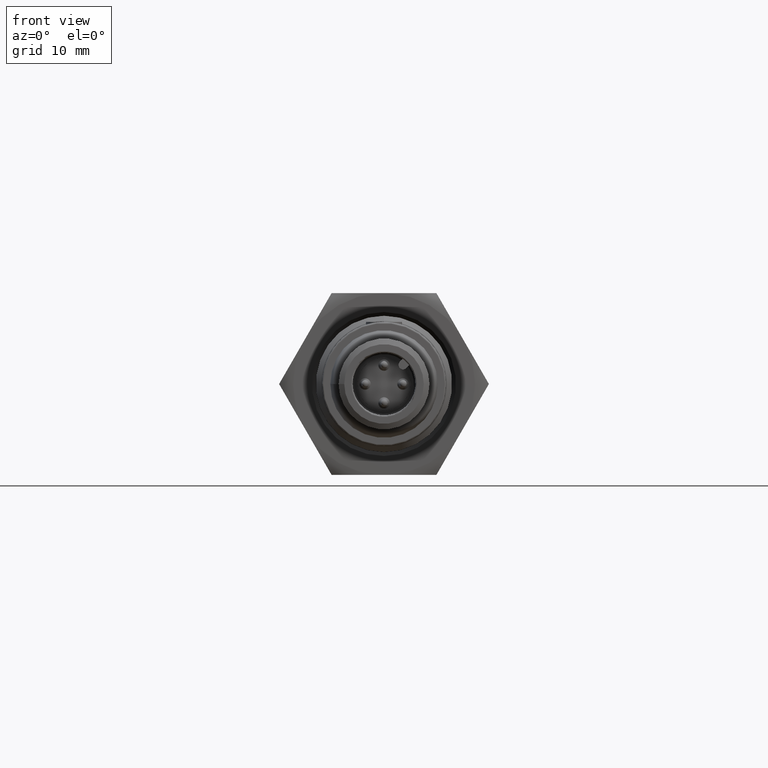
[diagram: clean part render]
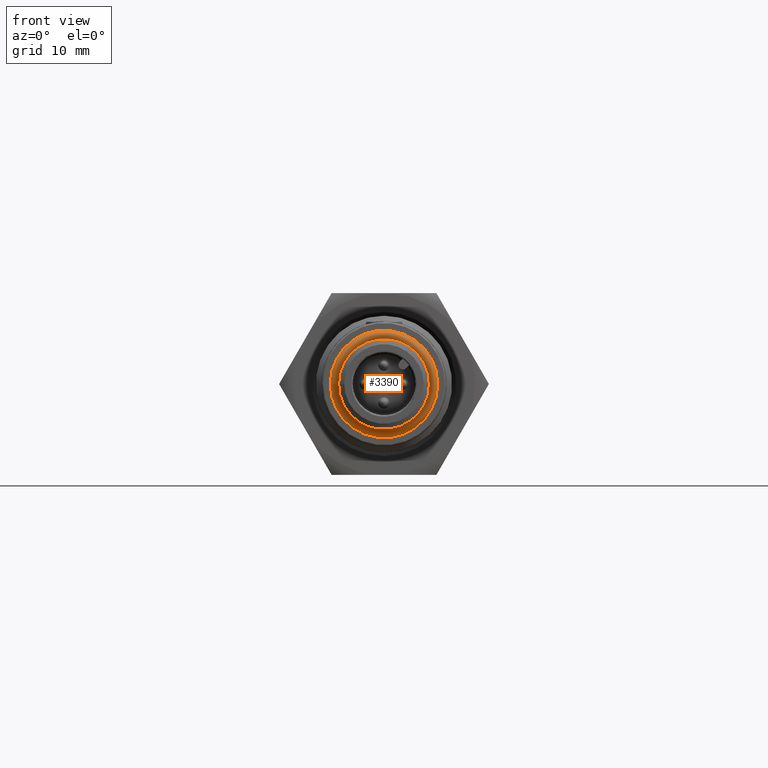
[diagram: same view with one face highlighted and labeled with its STEP entity id]
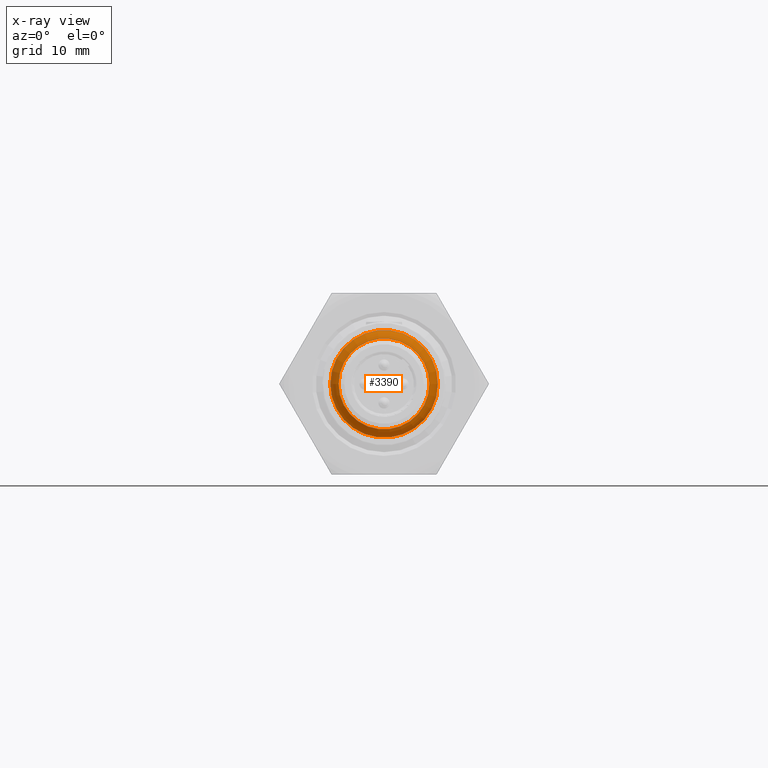
[diagram: x-ray of the same camera — body ghosted, the highlighted face saturated]
A machine part, front view. The second image highlights one B-rep face of the part: STEP entity #3390.
The next image is the same camera in x-ray: the body ghosted, the highlighted face saturated — about 0% of this face is hidden behind the body in this view.
In plain terms, the highlighted toroidal blend (fillet) surface has major radius 5.1 mm and minor (blend) radius 2 mm.
Its self-contained STEP definition (entity closure, byte-faithful):
#388 = AXIS2_PLACEMENT_3D ( 'NONE', #3678, #1662, #3347 ) ;
#390 = ORIENTED_EDGE ( 'NONE', *, *, #4523, .T. ) ;
#505 = DIRECTION ( 'NONE',  ( -0.9999999999999997780, 0.000000000000000000, 2.077430099999999464E-08 ) ) ;
#920 = DIRECTION ( 'NONE',  ( 0.000000000000000000, 1.000000000000000000, 0.000000000000000000 ) ) ;
#964 = EDGE_LOOP ( 'NONE', ( #390 ) ) ;
#1079 = EDGE_LOOP ( 'NONE', ( #2286 ) ) ;
#1094 = AXIS2_PLACEMENT_3D ( 'NONE', #1358, #920, #505 ) ;
#1101 = CARTESIAN_POINT ( 'NONE',  ( -0.2362204724409449064, -1.290907168035525521, 4.907315196850394102E-09 ) ) ;
#1358 = CARTESIAN_POINT ( 'NONE',  ( 0.000000000000000000, -1.220589958982409406, 0.000000000000000000 ) ) ;
#1538 = VERTEX_POINT ( 'NONE', #3228 ) ;
#1618 = AXIS2_PLACEMENT_3D ( 'NONE', #4099, #3756, #2003 ) ;
#1662 = DIRECTION ( 'NONE',  ( 0.000000000000000000, 1.000000000000000000, 0.000000000000000000 ) ) ;
#2003 = DIRECTION ( 'NONE',  ( -0.9999999999999997780, 0.000000000000000000, 2.077430099999999464E-08 ) ) ;
#2057 = TOROIDAL_SURFACE ( 'NONE', #1094, 0.2007874015748031815, 0.07874015748031495954 ) ;
#2286 = ORIENTED_EDGE ( 'NONE', *, *, #4538, .F. ) ;
#2328 = CIRCLE ( 'NONE', #388, 0.2795275590551181688 ) ;
#2652 = FACE_OUTER_BOUND ( 'NONE', #1079, .T. ) ;
#3019 = FACE_OUTER_BOUND ( 'NONE', #964, .T. ) ;
#3228 = CARTESIAN_POINT ( 'NONE',  ( -0.2795275590551181133, -1.220589958982409406, 5.806989649606299577E-09 ) ) ;
#3347 = DIRECTION ( 'NONE',  ( -0.9999999999999997780, 0.000000000000000000, 2.077430099999999795E-08 ) ) ;
#3390 = ADVANCED_FACE ( 'NONE', ( #3019, #2652 ), #2057, .T. ) ;
#3678 = CARTESIAN_POINT ( 'NONE',  ( 0.000000000000000000, -1.220589958982409406, 0.000000000000000000 ) ) ;
#3756 = DIRECTION ( 'NONE',  ( 0.000000000000000000, 1.000000000000000000, 0.000000000000000000 ) ) ;
#3994 = CIRCLE ( 'NONE', #1618, 0.2362204724409449619 ) ;
#4099 = CARTESIAN_POINT ( 'NONE',  ( 0.000000000000000000, -1.290907168035525521, 0.000000000000000000 ) ) ;
#4523 = EDGE_CURVE ( 'NONE', #4891, #4891, #3994, .T. ) ;
#4538 = EDGE_CURVE ( 'NONE', #1538, #1538, #2328, .T. ) ;
#4891 = VERTEX_POINT ( 'NONE', #1101 ) ;